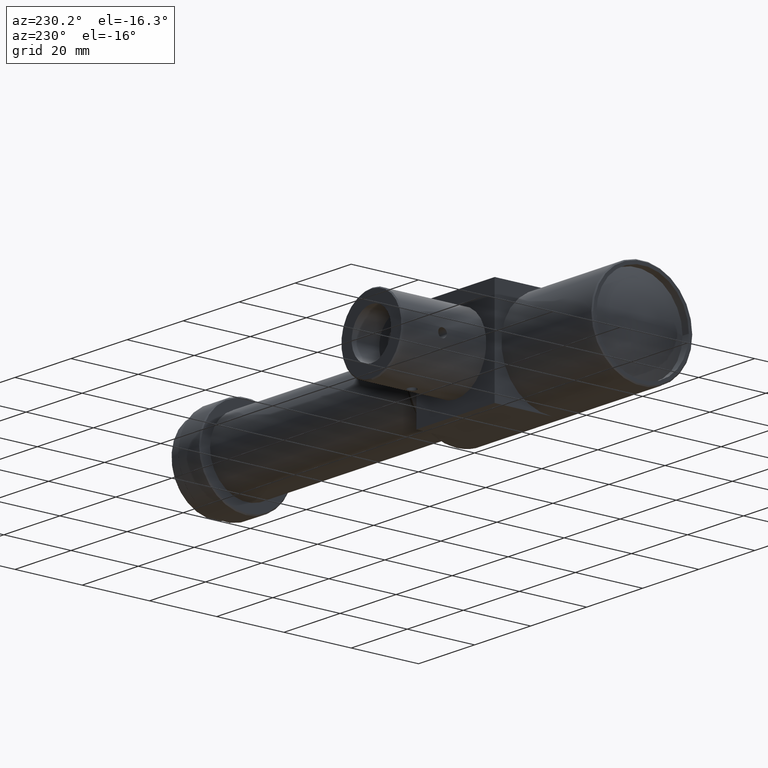
[diagram: clean part render]
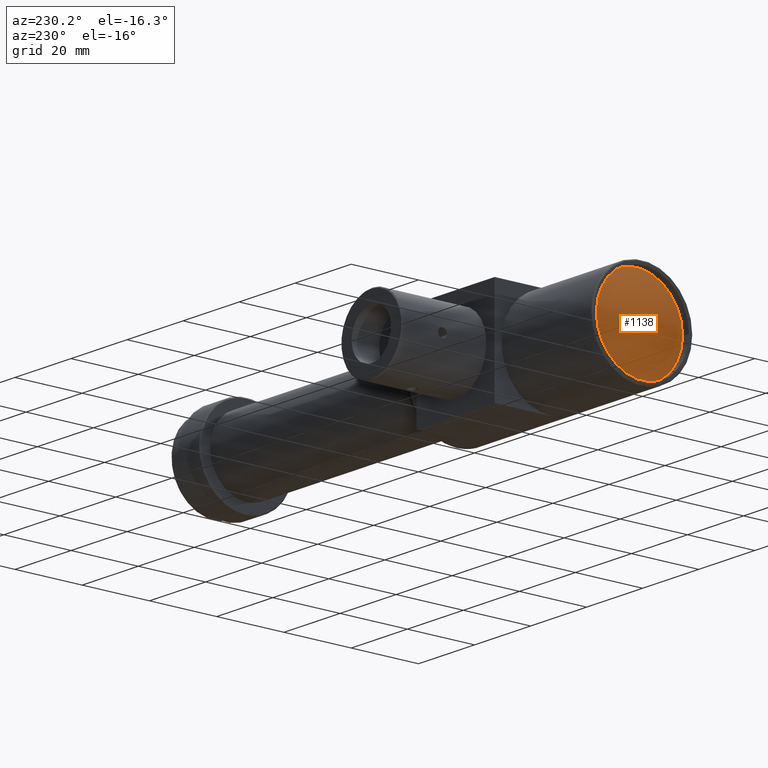
[diagram: same view with one face highlighted and labeled with its STEP entity id]
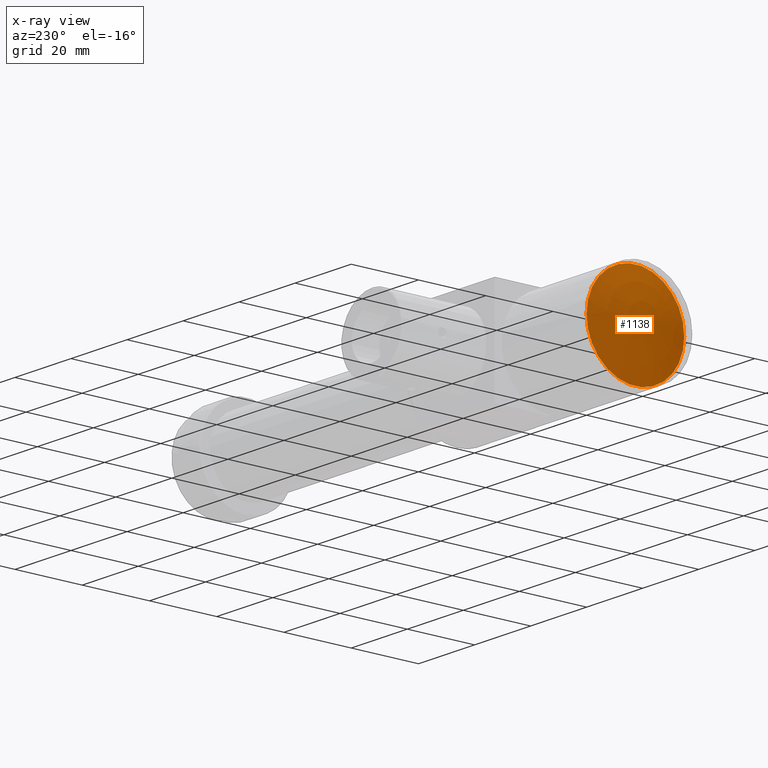
[diagram: x-ray of the same camera — body ghosted, the highlighted face saturated]
A machine part, auxiliary view. The second image highlights one B-rep face of the part: STEP entity #1138.
The next image is the same camera in x-ray: the body ghosted, the highlighted face saturated — about 0% of this face is hidden behind the body in this view.
In plain terms, the highlighted spherical surface has radius 31.2095 mm.
Its self-contained STEP definition (entity closure, byte-faithful):
#29 = DIRECTION ( 'NONE',  ( -1.193450434030137738E-16, 1.000000000000000000, 1.691970564993816113E-17 ) ) ;
#49 = VERTEX_POINT ( 'NONE', #1229 ) ;
#120 = EDGE_CURVE ( 'NONE', #49, #49, #1026, .T. ) ;
#162 = DIRECTION ( 'NONE',  ( 2.223326417977498328E-16, -1.000000000000000000, -1.691970564993817346E-17 ) ) ;
#236 = AXIS2_PLACEMENT_3D ( 'NONE', #955, #1226, #162 ) ;
#272 = SPHERICAL_SURFACE ( 'NONE', #236, 31.20951493132240273 ) ;
#357 = AXIS2_PLACEMENT_3D ( 'NONE', #519, #646, #29 ) ;
#482 = EDGE_LOOP ( 'NONE', ( #1215 ) ) ;
#519 = CARTESIAN_POINT ( 'NONE',  ( 2.600000000000012079, -1.387778780781445676E-14, 6.938893903907228378E-15 ) ) ;
#646 = DIRECTION ( 'NONE',  ( 1.000000000000000000, 1.149412201554173842E-16, 1.710569414459005214E-48 ) ) ;
#757 = FACE_OUTER_BOUND ( 'NONE', #482, .T. ) ;
#955 = CARTESIAN_POINT ( 'NONE',  ( 30.21805672755464656, -1.387778780781445676E-14, 6.938893903907228378E-15 ) ) ;
#1026 = CIRCLE ( 'NONE', #357, 14.53536256314270148 ) ;
#1138 = ADVANCED_FACE ( 'NONE', ( #757 ), #272, .T. ) ;
#1215 = ORIENTED_EDGE ( 'NONE', *, *, #120, .F. ) ;
#1226 = DIRECTION ( 'NONE',  ( -1.000000000000000000, -2.223326417977498328E-16, -1.817031243516665359E-33 ) ) ;
#1229 = CARTESIAN_POINT ( 'NONE',  ( 2.600000000000010303, 14.53536256314268904, 7.184827959990733263E-15 ) ) ;